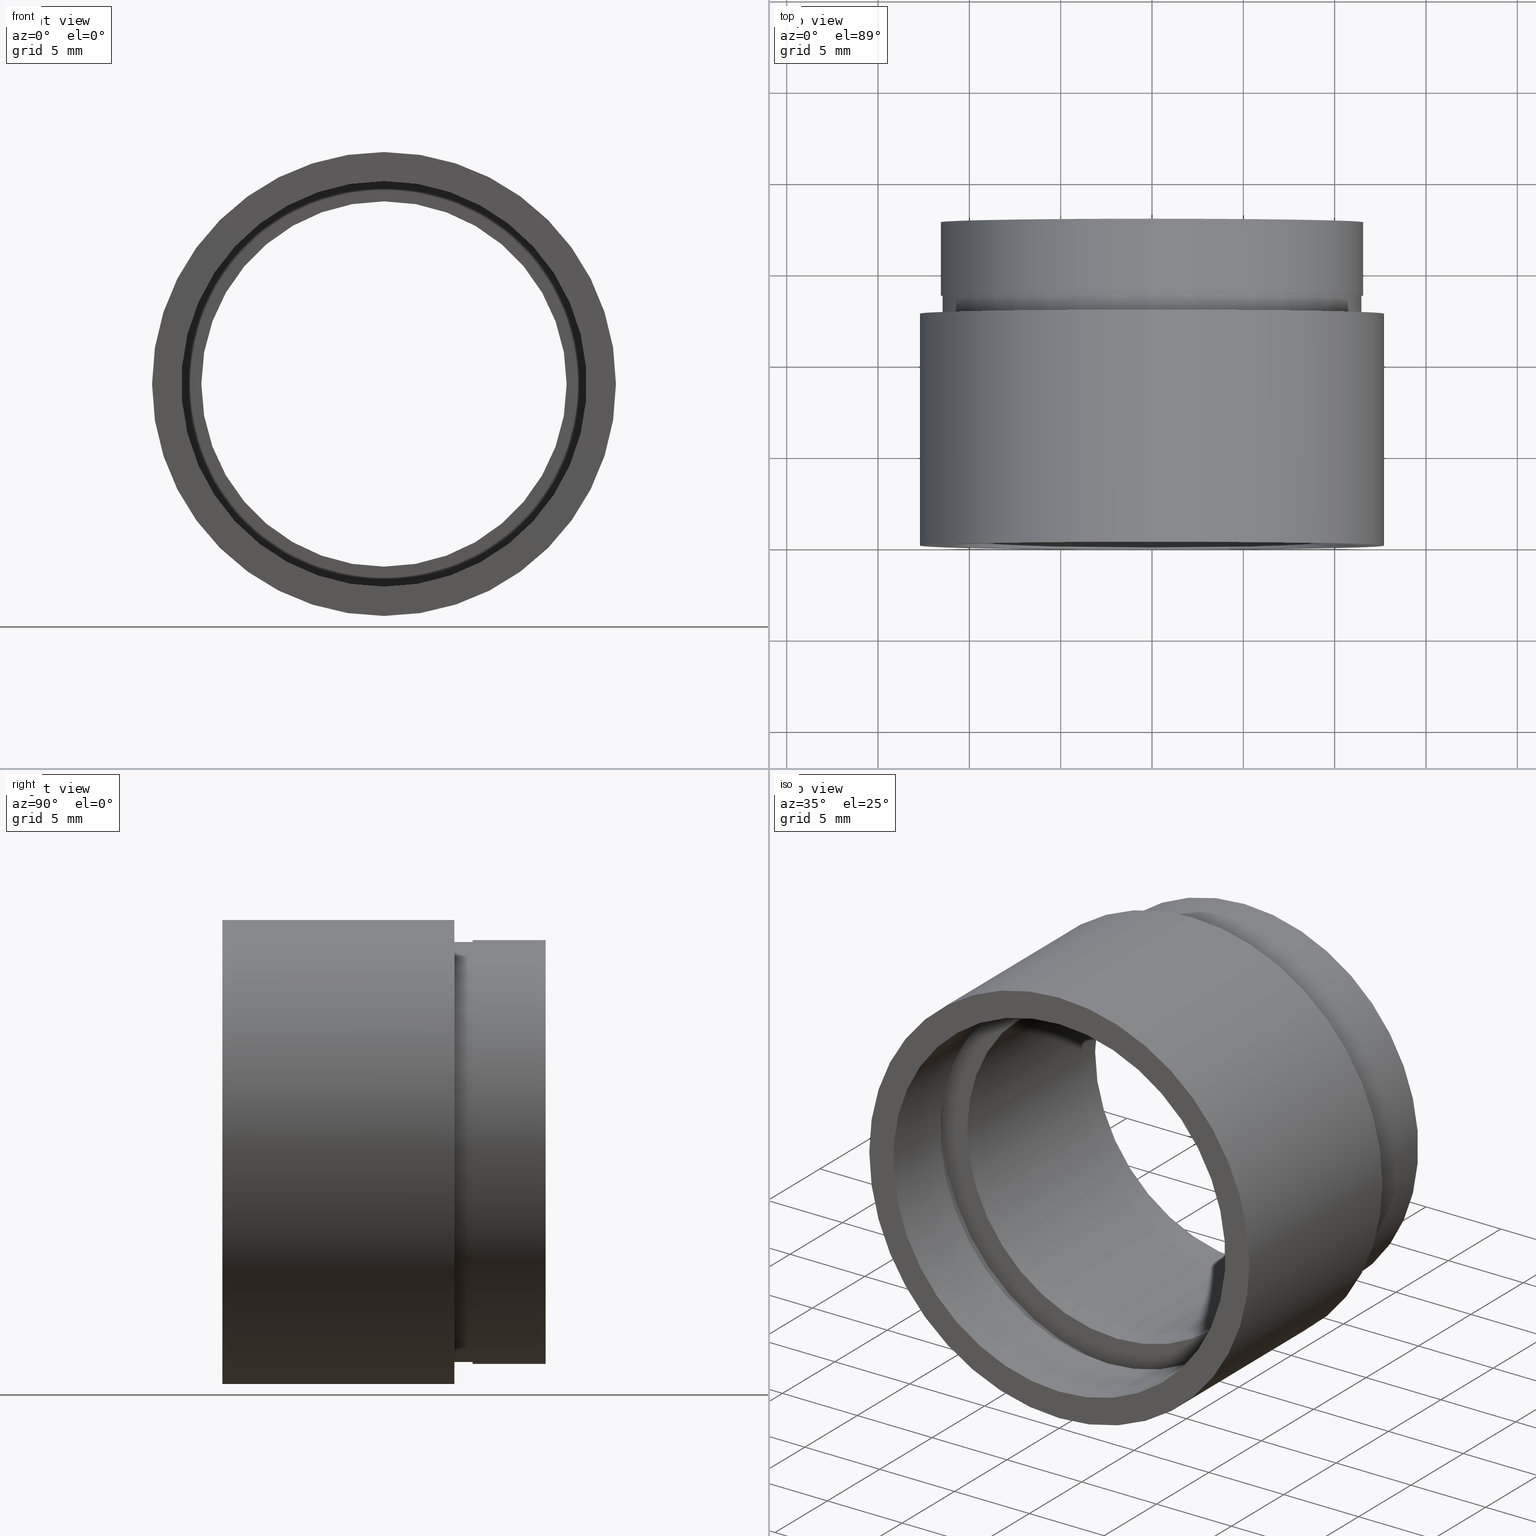
[diagram: canonical four-view strip — front | top / right | iso, engineering-drawing reading convention]
A machine part, canonical four-view strip (front | top / right | iso — engineering-drawing reading convention). The complete STEP part file that produces these views, byte-faithful:
ISO-10303-21;
HEADER;
FILE_DESCRIPTION (( 'STEP AP214' ),
    '1' );
FILE_NAME ('503059.STEP',
    '2019-09-09T02:06:02',
    ( '' ),
    ( '' ),
    'SwSTEP 2.0',
    'SolidWorks 2016',
    '' );
FILE_SCHEMA (( 'AUTOMOTIVE_DESIGN' ));
ENDSEC;

DATA;
#1 = DIRECTION ( 'NONE',  ( 0.0000000000000000000, 0.0000000000000000000, 1.000000000000000000 ) ) ;
#2 = CARTESIAN_POINT ( 'NONE',  ( 11.10000000000001700, -1.580543700394483700E-014, 0.0000000000000000000 ) ) ;
#3 = ORIENTED_EDGE ( 'NONE', *, *, #515, .F. ) ;
#4 = CARTESIAN_POINT ( 'NONE',  ( 1.408343819019458500E-015, 12.69999999999998900, -11.50000000000002000 ) ) ;
#5 = EDGE_CURVE ( 'NONE', #211, #91, #455, .T. ) ;
#6 = CARTESIAN_POINT ( 'NONE',  ( 1.359357947053564100E-015, 4.499999999999976000, -11.10000000000001700 ) ) ;
#7 = FACE_BOUND ( 'NONE', #210, .T. ) ;
#8 = CIRCLE ( 'NONE', #401, 11.70000000000001900 ) ;
#9 = AXIS2_PLACEMENT_3D ( 'NONE', #93, #481, #561 ) ;
#10 = DIRECTION ( 'NONE',  ( 0.0000000000000000000, 0.0000000000000000000, 1.000000000000000000 ) ) ;
#11 = ORIENTED_EDGE ( 'NONE', *, *, #283, .F. ) ;
#12 = ORIENTED_EDGE ( 'NONE', *, *, #317, .T. ) ;
#13 = COLOUR_RGB ( '',1.000000000000000000, 1.000000000000000000, 1.000000000000000000 ) ;
#14 = DIRECTION ( 'NONE',  ( -0.0000000000000000000, 1.000000000000000000, -0.0000000000000000000 ) ) ;
#15 = VECTOR ( 'NONE', #476, 1000.000000000000000 ) ;
#16 = SHAPE_DEFINITION_REPRESENTATION ( #265, #585 ) ;
#17 = EDGE_CURVE ( 'NONE', #611, #34, #128, .T. ) ;
#18 = ORIENTED_EDGE ( 'NONE', *, *, #549, .F. ) ;
#19 = FACE_OUTER_BOUND ( 'NONE', #274, .T. ) ;
#20 = VECTOR ( 'NONE', #416, 1000.000000000000000 ) ;
#21 = FACE_OUTER_BOUND ( 'NONE', #226, .T. ) ;
#22 = DIRECTION ( 'NONE',  ( -0.0000000000000000000, 1.000000000000000000, -0.0000000000000000000 ) ) ;
#23 = LINE ( 'NONE', #28, #20 ) ;
#24 = VERTEX_POINT ( 'NONE', #554 ) ;
#25 = DIRECTION ( 'NONE',  ( 0.0000000000000000000, -0.0000000000000000000, -1.000000000000000000 ) ) ;
#26 = ORIENTED_EDGE ( 'NONE', *, *, #190, .T. ) ;
#27 = PRESENTATION_LAYER_ASSIGNMENT (  '', '', ( #251 ) ) ;
#28 = CARTESIAN_POINT ( 'NONE',  ( 1.408343819019458500E-015, 161.3761669434274500, -11.50000000000002000 ) ) ;
#29 = CARTESIAN_POINT ( 'NONE',  ( 1.432836755002405700E-015, 5.499999999999976900, -11.70000000000001900 ) ) ;
#30 = AXIS2_PLACEMENT_3D ( 'NONE', #75, #599, #25 ) ;
#31 = LINE ( 'NONE', #90, #527 ) ;
#32 = EDGE_CURVE ( 'NONE', #418, #258, #116, .T. ) ;
#33 = DIRECTION ( 'NONE',  ( -0.0000000000000000000, 1.000000000000000000, -0.0000000000000000000 ) ) ;
#34 = VERTEX_POINT ( 'NONE', #29 ) ;
#35 = AXIS2_PLACEMENT_3D ( 'NONE', #252, #435, #245 ) ;
#36 = CARTESIAN_POINT ( 'NONE',  ( 1.555301434917141000E-015, -2.775557561562891400E-014, -12.70000000000002100 ) ) ;
#37 = ADVANCED_FACE ( 'NONE', ( #372 ), #539, .T. ) ;
#38 = CIRCLE ( 'NONE', #436, 11.10000000000001700 ) ;
#39 = CARTESIAN_POINT ( 'NONE',  ( 0.0000000000000000000, 161.3761669434274500, 0.0000000000000000000 ) ) ;
#40 = CIRCLE ( 'NONE', #360, 11.60000000000001700 ) ;
#41 = EDGE_CURVE ( 'NONE', #258, #434, #58, .T. ) ;
#42 = EDGE_LOOP ( 'NONE', ( #353, #566, #194, #452 ) ) ;
#43 = AXIS2_PLACEMENT_3D ( 'NONE', #614, #613, #246 ) ;
#44 = ORIENTED_EDGE ( 'NONE', *, *, #121, .T. ) ;
#45 = DIRECTION ( 'NONE',  ( 0.0000000000000000000, 0.0000000000000000000, 1.000000000000000000 ) ) ;
#46 = DIRECTION ( 'NONE',  ( 0.0000000000000000000, 0.0000000000000000000, 1.000000000000000000 ) ) ;
#47 = ADVANCED_FACE ( 'NONE', ( #454 ), #70, .T. ) ;
#48 = DIRECTION ( 'NONE',  ( -0.0000000000000000000, 1.000000000000000000, -0.0000000000000000000 ) ) ;
#49 = DIRECTION ( 'NONE',  ( 0.0000000000000000000, 0.0000000000000000000, 1.000000000000000000 ) ) ;
#50 =( NAMED_UNIT ( * ) PLANE_ANGLE_UNIT ( ) SI_UNIT ( $, .RADIAN. ) );
#51 =( LENGTH_UNIT ( ) NAMED_UNIT ( * ) SI_UNIT ( .MILLI., .METRE. ) );
#52 = AXIS2_PLACEMENT_3D ( 'NONE', #545, #270, #507 ) ;
#53 = DIRECTION ( 'NONE',  ( 0.0000000000000000000, 0.0000000000000000000, 1.000000000000000000 ) ) ;
#54 = ORIENTED_EDGE ( 'NONE', *, *, #89, .F. ) ;
#55 = EDGE_CURVE ( 'NONE', #321, #543, #192, .T. ) ;
#56 = VECTOR ( 'NONE', #213, 1000.000000000000000 ) ;
#57 = CARTESIAN_POINT ( 'NONE',  ( 1.420590287010931700E-015, 13.69999999999999000, -11.60000000000001700 ) ) ;
#58 = CIRCLE ( 'NONE', #244, 11.60000000000001700 ) ;
#59 = DIRECTION ( 'NONE',  ( 0.0000000000000000000, 0.0000000000000000000, 1.000000000000000000 ) ) ;
#60 = VERTEX_POINT ( 'NONE', #181 ) ;
#61 = VERTEX_POINT ( 'NONE', #323 ) ;
#62 = FILL_AREA_STYLE ('',( #312 ) ) ;
#63 = PLANE ( 'NONE',  #397 ) ;
#64 = PRESENTATION_LAYER_ASSIGNMENT (  '', '', ( #570 ) ) ;
#65 = EDGE_CURVE ( 'NONE', #299, #543, #23, .T. ) ;
#66 = EDGE_LOOP ( 'NONE', ( #445, #81, #271, #319 ) ) ;
#67 = FACE_OUTER_BOUND ( 'NONE', #195, .T. ) ;
#68 = AXIS2_PLACEMENT_3D ( 'NONE', #39, #568, #352 ) ;
#69 = FACE_BOUND ( 'NONE', #320, .T. ) ;
#70 = CYLINDRICAL_SURFACE ( 'NONE', #114, 11.60000000000001700 ) ;
#71 = EDGE_CURVE ( 'NONE', #34, #110, #624, .T. ) ;
#72 = EDGE_LOOP ( 'NONE', ( #11, #18 ) ) ;
#73 = VERTEX_POINT ( 'NONE', #329 ) ;
#74 = ORIENTED_EDGE ( 'NONE', *, *, #141, .T. ) ;
#75 = CARTESIAN_POINT ( 'NONE',  ( 11.60000000000001700, 17.69999999999999200, 0.0000000000000000000 ) ) ;
#76 = AXIS2_PLACEMENT_3D ( 'NONE', #470, #337, #564 ) ;
#77 =( NAMED_UNIT ( * ) SI_UNIT ( $, .STERADIAN. ) SOLID_ANGLE_UNIT ( ) );
#78 = DIRECTION ( 'NONE',  ( -0.0000000000000000000, 1.000000000000000000, -0.0000000000000000000 ) ) ;
#79 =( NAMED_UNIT ( * ) SI_UNIT ( $, .STERADIAN. ) SOLID_ANGLE_UNIT ( ) );
#80 = FILL_AREA_STYLE_COLOUR ( '', #335 ) ;
#81 = ORIENTED_EDGE ( 'NONE', *, *, #5, .T. ) ;
#82 = FILL_AREA_STYLE ('',( #80 ) ) ;
#83 = ORIENTED_EDGE ( 'NONE', *, *, #176, .F. ) ;
#84 =( GEOMETRIC_REPRESENTATION_CONTEXT ( 3 ) GLOBAL_UNCERTAINTY_ASSIGNED_CONTEXT ( ( #261 ) ) GLOBAL_UNIT_ASSIGNED_CONTEXT ( ( #51, #437, #348 ) ) REPRESENTATION_CONTEXT ( 'NONE', 'WORKASPACE' ) );
#85 = PLANE ( 'NONE',  #30 ) ;
#86 = ADVANCED_FACE ( 'NONE', ( #519 ), #423, .F. ) ;
#87 = CYLINDRICAL_SURFACE ( 'NONE', #119, 11.50000000000002000 ) ;
#88 = DIRECTION ( 'NONE',  ( -0.0000000000000000000, 1.000000000000000000, -0.0000000000000000000 ) ) ;
#89 = EDGE_CURVE ( 'NONE', #92, #425, #142, .T. ) ;
#90 = CARTESIAN_POINT ( 'NONE',  ( 0.0000000000000000000, 161.3761669434274500, 11.60000000000001700 ) ) ;
#91 = VERTEX_POINT ( 'NONE', #606 ) ;
#92 = VERTEX_POINT ( 'NONE', #375 ) ;
#93 = CARTESIAN_POINT ( 'NONE',  ( 0.0000000000000000000, 4.499999999999976000, 0.0000000000000000000 ) ) ;
#94 =( NAMED_UNIT ( * ) PLANE_ANGLE_UNIT ( ) SI_UNIT ( $, .RADIAN. ) );
#95 = SURFACE_STYLE_FILL_AREA ( #298 ) ;
#96 = FILL_AREA_STYLE_COLOUR ( '', #218 ) ;
#97 = CARTESIAN_POINT ( 'NONE',  ( 0.0000000000000000000, 161.3761669434274500, 0.0000000000000000000 ) ) ;
#98 = DIRECTION ( 'NONE',  ( -0.0000000000000000000, 1.000000000000000000, -0.0000000000000000000 ) ) ;
#99 = VERTEX_POINT ( 'NONE', #127 ) ;
#100 = AXIS2_PLACEMENT_3D ( 'NONE', #419, #379, #518 ) ;
#101 = ORIENTED_EDGE ( 'NONE', *, *, #283, .T. ) ;
#102 =( NAMED_UNIT ( * ) SI_UNIT ( $, .STERADIAN. ) SOLID_ANGLE_UNIT ( ) );
#103 =( LENGTH_UNIT ( ) NAMED_UNIT ( * ) SI_UNIT ( .MILLI., .METRE. ) );
#104 = FILL_AREA_STYLE_COLOUR ( '', #242 ) ;
#105 = CIRCLE ( 'NONE', #52, 12.70000000000002100 ) ;
#106 = UNCERTAINTY_MEASURE_WITH_UNIT (LENGTH_MEASURE( 1.000000000000000100E-005 ), #441, 'distance_accuracy_value', 'NONE');
#107 = AXIS2_PLACEMENT_3D ( 'NONE', #199, #257, #575 ) ;
#108 = DIRECTION ( 'NONE',  ( -0.0000000000000000000, 1.000000000000000000, -0.0000000000000000000 ) ) ;
#109 = ORIENTED_EDGE ( 'NONE', *, *, #473, .T. ) ;
#110 = VERTEX_POINT ( 'NONE', #411 ) ;
#111 = EDGE_CURVE ( 'NONE', #425, #282, #389, .T. ) ;
#112 = DIRECTION ( 'NONE',  ( 0.0000000000000000000, 0.0000000000000000000, 1.000000000000000000 ) ) ;
#113 = DIRECTION ( 'NONE',  ( -0.0000000000000000000, 1.000000000000000000, -0.0000000000000000000 ) ) ;
#114 = AXIS2_PLACEMENT_3D ( 'NONE', #414, #601, #367 ) ;
#115 = CIRCLE ( 'NONE', #100, 10.00000000000002000 ) ;
#116 = LINE ( 'NONE', #604, #603 ) ;
#117 = UNCERTAINTY_MEASURE_WITH_UNIT (LENGTH_MEASURE( 1.000000000000000100E-005 ), #426, 'distance_accuracy_value', 'NONE');
#118 = CARTESIAN_POINT ( 'NONE',  ( 0.0000000000000000000, 4.499999999999976000, 0.0000000000000000000 ) ) ;
#119 = AXIS2_PLACEMENT_3D ( 'NONE', #386, #98, #301 ) ;
#120 = VECTOR ( 'NONE', #88, 1000.000000000000000 ) ;
#121 = EDGE_CURVE ( 'NONE', #611, #24, #8, .T. ) ;
#122 = EDGE_CURVE ( 'NONE', #60, #321, #608, .T. ) ;
#123 = ORIENTED_EDGE ( 'NONE', *, *, #122, .F. ) ;
#124 = CARTESIAN_POINT ( 'NONE',  ( 1.432836755002405700E-015, 161.3761669434274500, -11.70000000000001900 ) ) ;
#125 = SURFACE_STYLE_USAGE ( .BOTH. , #504 ) ;
#126 = CYLINDRICAL_SURFACE ( 'NONE', #555, 11.70000000000001900 ) ;
#127 = CARTESIAN_POINT ( 'NONE',  ( 1.555301434917140800E-015, 12.69999999999998900, -12.70000000000001900 ) ) ;
#128 = LINE ( 'NONE', #124, #493 ) ;
#129 = DIRECTION ( 'NONE',  ( 0.0000000000000000000, 0.0000000000000000000, 1.000000000000000000 ) ) ;
#130 = AXIS2_PLACEMENT_3D ( 'NONE', #530, #579, #537 ) ;
#131 = DIRECTION ( 'NONE',  ( 0.0000000000000000000, 0.0000000000000000000, 1.000000000000000000 ) ) ;
#132 = ADVANCED_FACE ( 'NONE', ( #505, #406 ), #85, .F. ) ;
#133 = MECHANICAL_DESIGN_GEOMETRIC_PRESENTATION_REPRESENTATION (  '', ( #461 ), #168 ) ;
#134 =( LENGTH_UNIT ( ) NAMED_UNIT ( * ) SI_UNIT ( .MILLI., .METRE. ) );
#135 = LINE ( 'NONE', #310, #332 ) ;
#136 = FACE_OUTER_BOUND ( 'NONE', #225, .T. ) ;
#137 = PRESENTATION_STYLE_ASSIGNMENT (( #457 ) ) ;
#138 = AXIS2_PLACEMENT_3D ( 'NONE', #2, #581, #484 ) ;
#139 =( LENGTH_UNIT ( ) NAMED_UNIT ( * ) SI_UNIT ( .MILLI., .METRE. ) );
#140 = CARTESIAN_POINT ( 'NONE',  ( 0.0000000000000000000, 161.3761669434274500, 11.70000000000001900 ) ) ;
#141 = EDGE_CURVE ( 'NONE', #24, #611, #175, .T. ) ;
#142 = LINE ( 'NONE', #467, #254 ) ;
#143 = FILL_AREA_STYLE_COLOUR ( '', #288 ) ;
#144 = ADVANCED_FACE ( 'NONE', ( #593 ), #126, .F. ) ;
#145 = PRESENTATION_LAYER_ASSIGNMENT (  '', '', ( #461 ) ) ;
#146 = ORIENTED_EDGE ( 'NONE', *, *, #410, .F. ) ;
#147 = CARTESIAN_POINT ( 'NONE',  ( 0.0000000000000000000, 5.499999999999976900, 0.0000000000000000000 ) ) ;
#148 = SURFACE_STYLE_USAGE ( .BOTH. , #243 ) ;
#149 = CARTESIAN_POINT ( 'NONE',  ( 1.555301434917141000E-015, 161.3761669434274500, -12.70000000000002100 ) ) ;
#150 = FACE_BOUND ( 'NONE', #358, .T. ) ;
#151 = PRODUCT_CONTEXT ( 'NONE', #293, 'mechanical' ) ;
#152 = CARTESIAN_POINT ( 'NONE',  ( 0.0000000000000000000, 4.499999999999976000, 11.10000000000001700 ) ) ;
#153 =( GEOMETRIC_REPRESENTATION_CONTEXT ( 3 ) GLOBAL_UNCERTAINTY_ASSIGNED_CONTEXT ( ( #512 ) ) GLOBAL_UNIT_ASSIGNED_CONTEXT ( ( #382, #485, #296 ) ) REPRESENTATION_CONTEXT ( 'NONE', 'WORKASPACE' ) );
#154 = SURFACE_STYLE_FILL_AREA ( #383 ) ;
#155 = DIRECTION ( 'NONE',  ( 0.0000000000000000000, 0.0000000000000000000, 1.000000000000000000 ) ) ;
#156 = EDGE_LOOP ( 'NONE', ( #489, #365, #384, #3 ) ) ;
#157 = DIRECTION ( 'NONE',  ( 0.0000000000000000000, 0.0000000000000000000, 1.000000000000000000 ) ) ;
#158 = EDGE_CURVE ( 'NONE', #24, #110, #381, .T. ) ;
#159 = DIRECTION ( 'NONE',  ( -0.0000000000000000000, 1.000000000000000000, -0.0000000000000000000 ) ) ;
#160 = PRESENTATION_STYLE_ASSIGNMENT (( #623 ) ) ;
#161 = SURFACE_STYLE_FILL_AREA ( #82 ) ;
#162 = CARTESIAN_POINT ( 'NONE',  ( 1.224646799147355400E-015, 161.3761669434274500, -10.00000000000002000 ) ) ;
#163 = ORIENTED_EDGE ( 'NONE', *, *, #486, .F. ) ;
#164 = ORIENTED_EDGE ( 'NONE', *, *, #17, .F. ) ;
#165 = PRESENTATION_LAYER_ASSIGNMENT (  '', '', ( #560 ) ) ;
#166 = MANIFOLD_SOLID_BREP ( '��ת1', #398 ) ;
#167 = DIRECTION ( 'NONE',  ( -0.0000000000000000000, 1.000000000000000000, -0.0000000000000000000 ) ) ;
#168 =( GEOMETRIC_REPRESENTATION_CONTEXT ( 3 ) GLOBAL_UNCERTAINTY_ASSIGNED_CONTEXT ( ( #286 ) ) GLOBAL_UNIT_ASSIGNED_CONTEXT ( ( #134, #236, #77 ) ) REPRESENTATION_CONTEXT ( 'NONE', 'WORKASPACE' ) );
#169 = DIRECTION ( 'NONE',  ( -0.0000000000000000000, 1.000000000000000000, -0.0000000000000000000 ) ) ;
#170 = ORIENTED_EDGE ( 'NONE', *, *, #111, .F. ) ;
#171 = CIRCLE ( 'NONE', #304, 10.00000000000002000 ) ;
#172 = UNCERTAINTY_MEASURE_WITH_UNIT (LENGTH_MEASURE( 1.000000000000000100E-005 ), #103, 'distance_accuracy_value', 'NONE');
#173 = DIRECTION ( 'NONE',  ( -0.0000000000000000000, 1.000000000000000000, -0.0000000000000000000 ) ) ;
#174 = CYLINDRICAL_SURFACE ( 'NONE', #340, 11.70000000000001900 ) ;
#175 = CIRCLE ( 'NONE', #9, 11.70000000000001900 ) ;
#176 = EDGE_CURVE ( 'NONE', #412, #238, #115, .T. ) ;
#177 = ORIENTED_EDGE ( 'NONE', *, *, #377, .T. ) ;
#178 = ORIENTED_EDGE ( 'NONE', *, *, #607, .F. ) ;
#179 = AXIS2_PLACEMENT_3D ( 'NONE', #180, #278, #131 ) ;
#180 = CARTESIAN_POINT ( 'NONE',  ( 0.0000000000000000000, 5.499999999999976900, 0.0000000000000000000 ) ) ;
#181 = CARTESIAN_POINT ( 'NONE',  ( 0.0000000000000000000, 12.69999999999998900, 11.50000000000002000 ) ) ;
#182 = ADVANCED_FACE ( 'NONE', ( #334, #69 ), #380, .F. ) ;
#183 = DIRECTION ( 'NONE',  ( -0.0000000000000000000, 1.000000000000000000, -0.0000000000000000000 ) ) ;
#184 = FACE_OUTER_BOUND ( 'NONE', #506, .T. ) ;
#185 = FILL_AREA_STYLE ('',( #559 ) ) ;
#186 = ORIENTED_EDGE ( 'NONE', *, *, #256, .F. ) ;
#187 =( GEOMETRIC_REPRESENTATION_CONTEXT ( 3 ) GLOBAL_UNCERTAINTY_ASSIGNED_CONTEXT ( ( #172 ) ) GLOBAL_UNIT_ASSIGNED_CONTEXT ( ( #103, #50, #388 ) ) REPRESENTATION_CONTEXT ( 'NONE', 'WORKASPACE' ) );
#188 = DIRECTION ( 'NONE',  ( -0.0000000000000000000, 1.000000000000000000, -0.0000000000000000000 ) ) ;
#189 = ADVANCED_FACE ( 'NONE', ( #562, #586 ), #287, .F. ) ;
#190 = EDGE_CURVE ( 'NONE', #61, #418, #574, .T. ) ;
#191 = LINE ( 'NONE', #612, #120 ) ;
#192 = CIRCLE ( 'NONE', #371, 11.50000000000002000 ) ;
#193 = CARTESIAN_POINT ( 'NONE',  ( 12.70000000000001900, 12.69999999999998200, 0.0000000000000000000 ) ) ;
#194 = ORIENTED_EDGE ( 'NONE', *, *, #71, .T. ) ;
#195 = EDGE_LOOP ( 'NONE', ( #328, #595, #267, #474 ) ) ;
#196 =( NAMED_UNIT ( * ) SI_UNIT ( $, .STERADIAN. ) SOLID_ANGLE_UNIT ( ) );
#197 = FILL_AREA_STYLE_COLOUR ( '', #499 ) ;
#198 = AXIS2_PLACEMENT_3D ( 'NONE', #396, #216, #112 ) ;
#199 = CARTESIAN_POINT ( 'NONE',  ( 0.0000000000000000000, 12.69999999999998900, 0.0000000000000000000 ) ) ;
#200 = APPLICATION_PROTOCOL_DEFINITION ( 'draft international standard', 'automotive_design', 1998, #483 ) ;
#201 = ORIENTED_EDGE ( 'NONE', *, *, #41, .F. ) ;
#202 = DIRECTION ( 'NONE',  ( 0.0000000000000000000, 0.0000000000000000000, 1.000000000000000000 ) ) ;
#203 = DIRECTION ( 'NONE',  ( 0.0000000000000000000, 0.0000000000000000000, 1.000000000000000000 ) ) ;
#204 = CIRCLE ( 'NONE', #239, 10.00000000000002000 ) ;
#205 = DIRECTION ( 'NONE',  ( -0.0000000000000000000, 1.000000000000000000, -0.0000000000000000000 ) ) ;
#206 =( NAMED_UNIT ( * ) PLANE_ANGLE_UNIT ( ) SI_UNIT ( $, .RADIAN. ) );
#207 = AXIS2_PLACEMENT_3D ( 'NONE', #306, #540, #547 ) ;
#208 = SURFACE_SIDE_STYLE ('',( #279 ) ) ;
#209 = ORIENTED_EDGE ( 'NONE', *, *, #89, .T. ) ;
#210 = EDGE_LOOP ( 'NONE', ( #146, #170 ) ) ;
#211 = VERTEX_POINT ( 'NONE', #36 ) ;
#212 = EDGE_CURVE ( 'NONE', #73, #238, #191, .T. ) ;
#213 = DIRECTION ( 'NONE',  ( -0.0000000000000000000, 1.000000000000000000, -0.0000000000000000000 ) ) ;
#214 =( GEOMETRIC_REPRESENTATION_CONTEXT ( 3 ) GLOBAL_UNCERTAINTY_ASSIGNED_CONTEXT ( ( #235 ) ) GLOBAL_UNIT_ASSIGNED_CONTEXT ( ( #281, #417, #79 ) ) REPRESENTATION_CONTEXT ( 'NONE', 'WORKASPACE' ) );
#215 = UNCERTAINTY_MEASURE_WITH_UNIT (LENGTH_MEASURE( 1.000000000000000100E-005 ), #139, 'distance_accuracy_value', 'NONE');
#216 = DIRECTION ( 'NONE',  ( -0.0000000000000000000, 1.000000000000000000, -0.0000000000000000000 ) ) ;
#217 = CYLINDRICAL_SURFACE ( 'NONE', #68, 11.10000000000001700 ) ;
#218 = COLOUR_RGB ( '',1.000000000000000000, 1.000000000000000000, 1.000000000000000000 ) ;
#219 = DIRECTION ( 'NONE',  ( 0.0000000000000000000, 0.0000000000000000000, 1.000000000000000000 ) ) ;
#220 = ORIENTED_EDGE ( 'NONE', *, *, #565, .F. ) ;
#221 =( NAMED_UNIT ( * ) PLANE_ANGLE_UNIT ( ) SI_UNIT ( $, .RADIAN. ) );
#222 = FACE_OUTER_BOUND ( 'NONE', #359, .T. ) ;
#223 = CIRCLE ( 'NONE', #107, 11.50000000000002000 ) ;
#224 = EDGE_CURVE ( 'NONE', #61, #434, #31, .T. ) ;
#225 = EDGE_LOOP ( 'NONE', ( #54, #385, #109, #618 ) ) ;
#226 = EDGE_LOOP ( 'NONE', ( #164, #508, #237, #364 ) ) ;
#227 = CARTESIAN_POINT ( 'NONE',  ( 0.0000000000000000000, 161.3761669434274500, 0.0000000000000000000 ) ) ;
#228 = CARTESIAN_POINT ( 'NONE',  ( 0.0000000000000000000, 161.3761669434274500, 0.0000000000000000000 ) ) ;
#229 = FACE_BOUND ( 'NONE', #407, .T. ) ;
#230 = DIRECTION ( 'NONE',  ( 0.0000000000000000000, 0.0000000000000000000, 1.000000000000000000 ) ) ;
#231 = DIRECTION ( 'NONE',  ( 0.0000000000000000000, 0.0000000000000000000, 1.000000000000000000 ) ) ;
#232 = AXIS2_PLACEMENT_3D ( 'NONE', #249, #347, #157 ) ;
#233 = ORIENTED_EDGE ( 'NONE', *, *, #515, .T. ) ;
#234 = ORIENTED_EDGE ( 'NONE', *, *, #32, .T. ) ;
#235 = UNCERTAINTY_MEASURE_WITH_UNIT (LENGTH_MEASURE( 1.000000000000000100E-005 ), #281, 'distance_accuracy_value', 'NONE');
#236 =( NAMED_UNIT ( * ) PLANE_ANGLE_UNIT ( ) SI_UNIT ( $, .RADIAN. ) );
#237 = ORIENTED_EDGE ( 'NONE', *, *, #158, .T. ) ;
#238 = VERTEX_POINT ( 'NONE', #573 ) ;
#239 = AXIS2_PLACEMENT_3D ( 'NONE', #297, #205, #529 ) ;
#240 = FILL_AREA_STYLE ('',( #197 ) ) ;
#241 = DIRECTION ( 'NONE',  ( -0.0000000000000000000, 1.000000000000000000, -0.0000000000000000000 ) ) ;
#242 = COLOUR_RGB ( '',1.000000000000000000, 1.000000000000000000, 1.000000000000000000 ) ;
#243 = SURFACE_SIDE_STYLE ('',( #154 ) ) ;
#244 = AXIS2_PLACEMENT_3D ( 'NONE', #272, #460, #231 ) ;
#245 = DIRECTION ( 'NONE',  ( 0.0000000000000000000, 0.0000000000000000000, 1.000000000000000000 ) ) ;
#246 = DIRECTION ( 'NONE',  ( 0.0000000000000000000, 0.0000000000000000000, 1.000000000000000000 ) ) ;
#247 = ORIENTED_EDGE ( 'NONE', *, *, #71, .F. ) ;
#248 = VERTEX_POINT ( 'NONE', #331 ) ;
#249 = CARTESIAN_POINT ( 'NONE',  ( 0.0000000000000000000, 12.69999999999998900, 0.0000000000000000000 ) ) ;
#250 = CARTESIAN_POINT ( 'NONE',  ( 0.0000000000000000000, 161.3761669434274500, 0.0000000000000000000 ) ) ;
#251 = STYLED_ITEM ( 'NONE', ( #160 ), #341 ) ;
#252 = CARTESIAN_POINT ( 'NONE',  ( 0.0000000000000000000, 12.69999999999998900, 0.0000000000000000000 ) ) ;
#253 = DIRECTION ( 'NONE',  ( -0.0000000000000000000, 1.000000000000000000, -0.0000000000000000000 ) ) ;
#254 = VECTOR ( 'NONE', #188, 1000.000000000000000 ) ;
#255 = CARTESIAN_POINT ( 'NONE',  ( 0.0000000000000000000, 17.69999999999999200, 0.0000000000000000000 ) ) ;
#256 = EDGE_CURVE ( 'NONE', #92, #569, #362, .T. ) ;
#257 = DIRECTION ( 'NONE',  ( -0.0000000000000000000, 1.000000000000000000, -0.0000000000000000000 ) ) ;
#258 = VERTEX_POINT ( 'NONE', #609 ) ;
#259 = FILL_AREA_STYLE_COLOUR ( '', #405 ) ;
#260 = LINE ( 'NONE', #313, #56 ) ;
#261 = UNCERTAINTY_MEASURE_WITH_UNIT (LENGTH_MEASURE( 1.000000000000000100E-005 ), #51, 'distance_accuracy_value', 'NONE');
#262 =( LENGTH_UNIT ( ) NAMED_UNIT ( * ) SI_UNIT ( .MILLI., .METRE. ) );
#263 = CARTESIAN_POINT ( 'NONE',  ( 1.408343819019458500E-015, 13.69999999999999000, -11.50000000000002000 ) ) ;
#264 = AXIS2_PLACEMENT_3D ( 'NONE', #449, #113, #10 ) ;
#265 = PRODUCT_DEFINITION_SHAPE ( 'NONE', 'NONE',  #546 ) ;
#266 = DIRECTION ( 'NONE',  ( -0.0000000000000000000, 1.000000000000000000, -0.0000000000000000000 ) ) ;
#267 = ORIENTED_EDGE ( 'NONE', *, *, #315, .F. ) ;
#268 = CYLINDRICAL_SURFACE ( 'NONE', #469, 10.00000000000002000 ) ;
#269 = STYLED_ITEM ( 'NONE', ( #496 ), #514 ) ;
#270 = DIRECTION ( 'NONE',  ( -0.0000000000000000000, 1.000000000000000000, -0.0000000000000000000 ) ) ;
#271 = ORIENTED_EDGE ( 'NONE', *, *, #351, .T. ) ;
#272 = CARTESIAN_POINT ( 'NONE',  ( 0.0000000000000000000, 17.69999999999999200, 0.0000000000000000000 ) ) ;
#273 = AXIS2_PLACEMENT_3D ( 'NONE', #374, #22, #230 ) ;
#274 = EDGE_LOOP ( 'NONE', ( #522, #327 ) ) ;
#275 = CARTESIAN_POINT ( 'NONE',  ( 0.0000000000000000000, 13.69999999999999000, 0.0000000000000000000 ) ) ;
#276 = DIRECTION ( 'NONE',  ( 0.0000000000000000000, 0.0000000000000000000, 1.000000000000000000 ) ) ;
#277 = FACE_OUTER_BOUND ( 'NONE', #344, .T. ) ;
#278 = DIRECTION ( 'NONE',  ( -0.0000000000000000000, 1.000000000000000000, -0.0000000000000000000 ) ) ;
#279 = SURFACE_STYLE_FILL_AREA ( #392 ) ;
#280 = ADVANCED_FACE ( 'NONE', ( #136 ), #217, .F. ) ;
#281 =( LENGTH_UNIT ( ) NAMED_UNIT ( * ) SI_UNIT ( .MILLI., .METRE. ) );
#282 = VERTEX_POINT ( 'NONE', #152 ) ;
#283 = EDGE_CURVE ( 'NONE', #60, #299, #223, .T. ) ;
#284 = DIRECTION ( 'NONE',  ( 0.0000000000000000000, 0.0000000000000000000, 1.000000000000000000 ) ) ;
#285 = EDGE_CURVE ( 'NONE', #211, #99, #448, .T. ) ;
#286 = UNCERTAINTY_MEASURE_WITH_UNIT (LENGTH_MEASURE( 1.000000000000000100E-005 ), #134, 'distance_accuracy_value', 'NONE');
#287 = PLANE ( 'NONE',  #588 ) ;
#288 = COLOUR_RGB ( '',1.000000000000000000, 1.000000000000000000, 1.000000000000000000 ) ;
#289 = ADVANCED_FACE ( 'NONE', ( #184 ), #268, .F. ) ;
#290 = SURFACE_STYLE_USAGE ( .BOTH. , #421 ) ;
#291 = VERTEX_POINT ( 'NONE', #528 ) ;
#292 = ADVANCED_FACE ( 'NONE', ( #21 ), #174, .F. ) ;
#293 = APPLICATION_CONTEXT ( 'automotive_design' ) ;
#294 =( NAMED_UNIT ( * ) SI_UNIT ( $, .STERADIAN. ) SOLID_ANGLE_UNIT ( ) );
#295 = AXIS2_PLACEMENT_3D ( 'NONE', #255, #342, #45 ) ;
#296 =( NAMED_UNIT ( * ) SI_UNIT ( $, .STERADIAN. ) SOLID_ANGLE_UNIT ( ) );
#297 = CARTESIAN_POINT ( 'NONE',  ( 0.0000000000000000000, 5.499999999999976900, 0.0000000000000000000 ) ) ;
#298 = FILL_AREA_STYLE ('',( #104 ) ) ;
#299 = VERTEX_POINT ( 'NONE', #4 ) ;
#300 = CARTESIAN_POINT ( 'NONE',  ( 0.0000000000000000000, 17.69999999999999200, 0.0000000000000000000 ) ) ;
#301 = DIRECTION ( 'NONE',  ( 0.0000000000000000000, 0.0000000000000000000, 1.000000000000000000 ) ) ;
#302 = CARTESIAN_POINT ( 'NONE',  ( 0.0000000000000000000, 13.69999999999999000, 11.50000000000002000 ) ) ;
#303 = CYLINDRICAL_SURFACE ( 'NONE', #198, 11.60000000000001700 ) ;
#304 = AXIS2_PLACEMENT_3D ( 'NONE', #300, #390, #53 ) ;
#305 = DIRECTION ( 'NONE',  ( 0.0000000000000000000, 0.0000000000000000000, 1.000000000000000000 ) ) ;
#306 = CARTESIAN_POINT ( 'NONE',  ( 11.10000000000001700, 4.499999999999983100, 0.0000000000000000000 ) ) ;
#307 = EDGE_LOOP ( 'NONE', ( #220, #177, #427, #582 ) ) ;
#308 = EDGE_LOOP ( 'NONE', ( #163, #247 ) ) ;
#309 = MECHANICAL_DESIGN_GEOMETRIC_PRESENTATION_REPRESENTATION (  '', ( #393 ), #187 ) ;
#310 = CARTESIAN_POINT ( 'NONE',  ( 0.0000000000000000000, 161.3761669434274500, 11.10000000000001700 ) ) ;
#311 = AXIS2_PLACEMENT_3D ( 'NONE', #227, #597, #318 ) ;
#312 = FILL_AREA_STYLE_COLOUR ( '', #13 ) ;
#313 = CARTESIAN_POINT ( 'NONE',  ( 0.0000000000000000000, 161.3761669434274500, 12.70000000000002100 ) ) ;
#314 = PRODUCT_RELATED_PRODUCT_CATEGORY ( 'part', '', ( #465 ) ) ;
#315 = EDGE_CURVE ( 'NONE', #248, #99, #538, .T. ) ;
#316 = FACE_OUTER_BOUND ( 'NONE', #66, .T. ) ;
#317 = EDGE_CURVE ( 'NONE', #418, #61, #40, .T. ) ;
#318 = DIRECTION ( 'NONE',  ( 0.0000000000000000000, 0.0000000000000000000, 1.000000000000000000 ) ) ;
#319 = ORIENTED_EDGE ( 'NONE', *, *, #578, .F. ) ;
#320 = EDGE_LOOP ( 'NONE', ( #463, #495 ) ) ;
#321 = VERTEX_POINT ( 'NONE', #302 ) ;
#322 = DIRECTION ( 'NONE',  ( -0.0000000000000000000, 1.000000000000000000, -0.0000000000000000000 ) ) ;
#323 = CARTESIAN_POINT ( 'NONE',  ( 0.0000000000000000000, 13.69999999999999000, 11.60000000000001700 ) ) ;
#324 = CARTESIAN_POINT ( 'NONE',  ( 0.0000000000000000000, -2.775557561562891400E-014, 0.0000000000000000000 ) ) ;
#325 =( GEOMETRIC_REPRESENTATION_CONTEXT ( 3 ) GLOBAL_UNCERTAINTY_ASSIGNED_CONTEXT ( ( #215 ) ) GLOBAL_UNIT_ASSIGNED_CONTEXT ( ( #139, #479, #196 ) ) REPRESENTATION_CONTEXT ( 'NONE', 'WORKASPACE' ) );
#326 = SURFACE_STYLE_FILL_AREA ( #345 ) ;
#327 = ORIENTED_EDGE ( 'NONE', *, *, #5, .F. ) ;
#328 = ORIENTED_EDGE ( 'NONE', *, *, #534, .T. ) ;
#329 = CARTESIAN_POINT ( 'NONE',  ( 0.0000000000000000000, 5.499999999999976900, 10.00000000000002000 ) ) ;
#330 = ADVANCED_FACE ( 'NONE', ( #395 ), #87, .T. ) ;
#331 = CARTESIAN_POINT ( 'NONE',  ( 0.0000000000000000000, 12.69999999999998900, 12.70000000000001900 ) ) ;
#332 = VECTOR ( 'NONE', #400, 1000.000000000000000 ) ;
#333 = DIRECTION ( 'NONE',  ( 0.0000000000000000000, -0.0000000000000000000, -1.000000000000000000 ) ) ;
#334 = FACE_OUTER_BOUND ( 'NONE', #308, .T. ) ;
#335 = COLOUR_RGB ( '',1.000000000000000000, 1.000000000000000000, 1.000000000000000000 ) ;
#336 = AXIS2_PLACEMENT_3D ( 'NONE', #147, #430, #1 ) ;
#337 = DIRECTION ( 'NONE',  ( -0.0000000000000000000, 1.000000000000000000, -0.0000000000000000000 ) ) ;
#338 = ADVANCED_FACE ( 'NONE', ( #19, #229 ), #433, .F. ) ;
#339 = ORIENTED_EDGE ( 'NONE', *, *, #502, .T. ) ;
#340 = AXIS2_PLACEMENT_3D ( 'NONE', #250, #349, #203 ) ;
#341 = ADVANCED_FACE ( 'NONE', ( #368 ), #468, .F. ) ;
#342 = DIRECTION ( 'NONE',  ( -0.0000000000000000000, 1.000000000000000000, -0.0000000000000000000 ) ) ;
#343 = MECHANICAL_DESIGN_GEOMETRIC_PRESENTATION_REPRESENTATION (  '', ( #619 ), #214 ) ;
#344 = EDGE_LOOP ( 'NONE', ( #589, #12, #577, #201 ) ) ;
#345 = FILL_AREA_STYLE ('',( #96 ) ) ;
#346 = DIRECTION ( 'NONE',  ( 0.0000000000000000000, 0.0000000000000000000, 1.000000000000000000 ) ) ;
#347 = DIRECTION ( 'NONE',  ( -0.0000000000000000000, 1.000000000000000000, -0.0000000000000000000 ) ) ;
#348 =( NAMED_UNIT ( * ) SI_UNIT ( $, .STERADIAN. ) SOLID_ANGLE_UNIT ( ) );
#349 = DIRECTION ( 'NONE',  ( -0.0000000000000000000, 1.000000000000000000, -0.0000000000000000000 ) ) ;
#350 = VECTOR ( 'NONE', #488, 1000.000000000000000 ) ;
#351 = EDGE_CURVE ( 'NONE', #91, #248, #260, .T. ) ;
#352 = DIRECTION ( 'NONE',  ( 0.0000000000000000000, 0.0000000000000000000, 1.000000000000000000 ) ) ;
#353 = ORIENTED_EDGE ( 'NONE', *, *, #121, .F. ) ;
#354 = EDGE_LOOP ( 'NONE', ( #567, #83 ) ) ;
#355 = LINE ( 'NONE', #162, #478 ) ;
#356 = DIRECTION ( 'NONE',  ( -0.0000000000000000000, 1.000000000000000000, 0.0000000000000000000 ) ) ;
#357 = SURFACE_SIDE_STYLE ('',( #510 ) ) ;
#358 = EDGE_LOOP ( 'NONE', ( #576, #233 ) ) ;
#359 = EDGE_LOOP ( 'NONE', ( #74, #44 ) ) ;
#360 = AXIS2_PLACEMENT_3D ( 'NONE', #621, #108, #346 ) ;
#361 = SURFACE_STYLE_USAGE ( .BOTH. , #357 ) ;
#362 = CIRCLE ( 'NONE', #76, 11.10000000000001700 ) ;
#363 = COLOUR_RGB ( '',1.000000000000000000, 1.000000000000000000, 1.000000000000000000 ) ;
#364 = ORIENTED_EDGE ( 'NONE', *, *, #486, .T. ) ;
#365 = ORIENTED_EDGE ( 'NONE', *, *, #549, .T. ) ;
#366 = MECHANICAL_DESIGN_GEOMETRIC_PRESENTATION_REPRESENTATION (  '', ( #269 ), #482 ) ;
#367 = DIRECTION ( 'NONE',  ( 0.0000000000000000000, 0.0000000000000000000, 1.000000000000000000 ) ) ;
#368 = FACE_OUTER_BOUND ( 'NONE', #548, .T. ) ;
#369 = UNCERTAINTY_MEASURE_WITH_UNIT (LENGTH_MEASURE( 1.000000000000000100E-005 ), #262, 'distance_accuracy_value', 'NONE');
#370 = PRODUCT_DEFINITION_FORMATION_WITH_SPECIFIED_SOURCE ( '�κ�', '', #465, .NOT_KNOWN. ) ;
#371 = AXIS2_PLACEMENT_3D ( 'NONE', #275, #373, #602 ) ;
#372 = FACE_OUTER_BOUND ( 'NONE', #156, .T. ) ;
#373 = DIRECTION ( 'NONE',  ( -0.0000000000000000000, 1.000000000000000000, -0.0000000000000000000 ) ) ;
#374 = CARTESIAN_POINT ( 'NONE',  ( 0.0000000000000000000, 4.499999999999976000, 0.0000000000000000000 ) ) ;
#375 = CARTESIAN_POINT ( 'NONE',  ( 1.359357947053564100E-015, -2.775557561562891400E-014, -11.10000000000001700 ) ) ;
#376 = ORIENTED_EDGE ( 'NONE', *, *, #377, .F. ) ;
#377 = EDGE_CURVE ( 'NONE', #291, #412, #355, .T. ) ;
#378 = ADVANCED_FACE ( 'NONE', ( #438, #150 ), #63, .F. ) ;
#379 = DIRECTION ( 'NONE',  ( -0.0000000000000000000, 1.000000000000000000, -0.0000000000000000000 ) ) ;
#380 = PLANE ( 'NONE',  #598 ) ;
#381 = LINE ( 'NONE', #140, #15 ) ;
#382 =( LENGTH_UNIT ( ) NAMED_UNIT ( * ) SI_UNIT ( .MILLI., .METRE. ) );
#383 = FILL_AREA_STYLE ('',( #143 ) ) ;
#384 = ORIENTED_EDGE ( 'NONE', *, *, #122, .T. ) ;
#385 = ORIENTED_EDGE ( 'NONE', *, *, #502, .F. ) ;
#386 = CARTESIAN_POINT ( 'NONE',  ( 0.0000000000000000000, 161.3761669434274500, 0.0000000000000000000 ) ) ;
#387 = AXIS2_PLACEMENT_3D ( 'NONE', #432, #202, #480 ) ;
#388 =( NAMED_UNIT ( * ) SI_UNIT ( $, .STERADIAN. ) SOLID_ANGLE_UNIT ( ) );
#389 = CIRCLE ( 'NONE', #273, 11.10000000000001700 ) ;
#390 = DIRECTION ( 'NONE',  ( -0.0000000000000000000, 1.000000000000000000, -0.0000000000000000000 ) ) ;
#391 = CARTESIAN_POINT ( 'NONE',  ( 0.0000000000000000000, 161.3761669434274500, 0.0000000000000000000 ) ) ;
#392 = FILL_AREA_STYLE ('',( #259 ) ) ;
#393 = STYLED_ITEM ( 'NONE', ( #557 ), #585 ) ;
#394 = CIRCLE ( 'NONE', #35, 11.50000000000002000 ) ;
#395 = FACE_OUTER_BOUND ( 'NONE', #413, .T. ) ;
#396 = CARTESIAN_POINT ( 'NONE',  ( 0.0000000000000000000, 161.3761669434274500, 0.0000000000000000000 ) ) ;
#397 = AXIS2_PLACEMENT_3D ( 'NONE', #402, #356, #491 ) ;
#398 = CLOSED_SHELL ( 'NONE', ( #341, #144, #86, #47, #330, #556, #338, #477, #189, #37, #378, #514, #132, #289, #182, #292, #472, #280 ) ) ;
#399 = ORIENTED_EDGE ( 'NONE', *, *, #473, .F. ) ;
#400 = DIRECTION ( 'NONE',  ( -0.0000000000000000000, 1.000000000000000000, -0.0000000000000000000 ) ) ;
#401 = AXIS2_PLACEMENT_3D ( 'NONE', #551, #466, #276 ) ;
#402 = CARTESIAN_POINT ( 'NONE',  ( 11.50000000000002000, 13.69999999999998500, 0.0000000000000000000 ) ) ;
#403 = CIRCLE ( 'NONE', #450, 11.70000000000001900 ) ;
#404 = CARTESIAN_POINT ( 'NONE',  ( 1.224646799147355400E-015, 17.69999999999999200, -10.00000000000002000 ) ) ;
#405 = COLOUR_RGB ( '',1.000000000000000000, 1.000000000000000000, 1.000000000000000000 ) ;
#406 = FACE_OUTER_BOUND ( 'NONE', #610, .T. ) ;
#407 = EDGE_LOOP ( 'NONE', ( #339, #583 ) ) ;
#408 = AXIS2_PLACEMENT_3D ( 'NONE', #324, #78, #129 ) ;
#409 = CIRCLE ( 'NONE', #295, 11.60000000000001700 ) ;
#410 = EDGE_CURVE ( 'NONE', #282, #425, #458, .T. ) ;
#411 = CARTESIAN_POINT ( 'NONE',  ( 0.0000000000000000000, 5.499999999999976900, 11.70000000000001900 ) ) ;
#412 = VERTEX_POINT ( 'NONE', #404 ) ;
#413 = EDGE_LOOP ( 'NONE', ( #101, #444, #594, #123 ) ) ;
#414 = CARTESIAN_POINT ( 'NONE',  ( 0.0000000000000000000, 161.3761669434274500, 0.0000000000000000000 ) ) ;
#415 = AXIS2_PLACEMENT_3D ( 'NONE', #391, #159, #580 ) ;
#416 = DIRECTION ( 'NONE',  ( -0.0000000000000000000, 1.000000000000000000, -0.0000000000000000000 ) ) ;
#417 =( NAMED_UNIT ( * ) PLANE_ANGLE_UNIT ( ) SI_UNIT ( $, .RADIAN. ) );
#418 = VERTEX_POINT ( 'NONE', #57 ) ;
#419 = CARTESIAN_POINT ( 'NONE',  ( 0.0000000000000000000, 17.69999999999999200, 0.0000000000000000000 ) ) ;
#420 = CIRCLE ( 'NONE', #232, 12.70000000000001900 ) ;
#421 = SURFACE_SIDE_STYLE ('',( #513 ) ) ;
#422 = SURFACE_STYLE_FILL_AREA ( #185 ) ;
#423 = CYLINDRICAL_SURFACE ( 'NONE', #541, 10.00000000000002000 ) ;
#424 = DIRECTION ( 'NONE',  ( -0.0000000000000000000, 1.000000000000000000, -0.0000000000000000000 ) ) ;
#425 = VERTEX_POINT ( 'NONE', #6 ) ;
#426 =( LENGTH_UNIT ( ) NAMED_UNIT ( * ) SI_UNIT ( .MILLI., .METRE. ) );
#427 = ORIENTED_EDGE ( 'NONE', *, *, #176, .T. ) ;
#428 = SURFACE_STYLE_USAGE ( .BOTH. , #572 ) ;
#429 = PRESENTATION_LAYER_ASSIGNMENT (  '', '', ( #619 ) ) ;
#430 = DIRECTION ( 'NONE',  ( -0.0000000000000000000, 1.000000000000000000, -0.0000000000000000000 ) ) ;
#431 = CARTESIAN_POINT ( 'NONE',  ( 0.0000000000000000000, 161.3761669434274500, 0.0000000000000000000 ) ) ;
#432 = CARTESIAN_POINT ( 'NONE',  ( 0.0000000000000000000, 0.0000000000000000000, 0.0000000000000000000 ) ) ;
#433 = PLANE ( 'NONE',  #138 ) ;
#434 = VERTEX_POINT ( 'NONE', #453 ) ;
#435 = DIRECTION ( 'NONE',  ( -0.0000000000000000000, 1.000000000000000000, -0.0000000000000000000 ) ) ;
#436 = AXIS2_PLACEMENT_3D ( 'NONE', #447, #544, #59 ) ;
#437 =( NAMED_UNIT ( * ) PLANE_ANGLE_UNIT ( ) SI_UNIT ( $, .RADIAN. ) );
#438 = FACE_OUTER_BOUND ( 'NONE', #550, .T. ) ;
#439 = PRESENTATION_STYLE_ASSIGNMENT (( #526 ) ) ;
#440 = STYLED_ITEM ( 'NONE', ( #600 ), #280 ) ;
#441 =( LENGTH_UNIT ( ) NAMED_UNIT ( * ) SI_UNIT ( .MILLI., .METRE. ) );
#442 = VECTOR ( 'NONE', #33, 1000.000000000000000 ) ;
#443 = ORIENTED_EDGE ( 'NONE', *, *, #578, .T. ) ;
#444 = ORIENTED_EDGE ( 'NONE', *, *, #65, .T. ) ;
#445 = ORIENTED_EDGE ( 'NONE', *, *, #285, .F. ) ;
#446 = CARTESIAN_POINT ( 'NONE',  ( 0.0000000000000000000, 161.3761669434274500, 0.0000000000000000000 ) ) ;
#447 = CARTESIAN_POINT ( 'NONE',  ( 0.0000000000000000000, -2.775557561562891400E-014, 0.0000000000000000000 ) ) ;
#448 = LINE ( 'NONE', #149, #350 ) ;
#449 = CARTESIAN_POINT ( 'NONE',  ( 0.0000000000000000000, 13.69999999999999000, 0.0000000000000000000 ) ) ;
#450 = AXIS2_PLACEMENT_3D ( 'NONE', #497, #266, #590 ) ;
#451 = ORIENTED_EDGE ( 'NONE', *, *, #607, .T. ) ;
#452 = ORIENTED_EDGE ( 'NONE', *, *, #158, .F. ) ;
#453 = CARTESIAN_POINT ( 'NONE',  ( 0.0000000000000000000, 17.69999999999999200, 11.60000000000001700 ) ) ;
#454 = FACE_OUTER_BOUND ( 'NONE', #464, .T. ) ;
#455 = CIRCLE ( 'NONE', #408, 12.70000000000002100 ) ;
#456 = ORIENTED_EDGE ( 'NONE', *, *, #190, .F. ) ;
#457 = SURFACE_STYLE_USAGE ( .BOTH. , #553 ) ;
#458 = CIRCLE ( 'NONE', #509, 11.10000000000001700 ) ;
#459 = AXIS2_PLACEMENT_3D ( 'NONE', #97, #48, #155 ) ;
#460 = DIRECTION ( 'NONE',  ( -0.0000000000000000000, 1.000000000000000000, -0.0000000000000000000 ) ) ;
#461 = STYLED_ITEM ( 'NONE', ( #137 ), #47 ) ;
#462 = DIRECTION ( 'NONE',  ( 0.0000000000000000000, 0.0000000000000000000, 1.000000000000000000 ) ) ;
#463 = ORIENTED_EDGE ( 'NONE', *, *, #596, .T. ) ;
#464 = EDGE_LOOP ( 'NONE', ( #26, #234, #178, #475 ) ) ;
#465 = PRODUCT ( '503059', '503059', '', ( #151 ) ) ;
#466 = DIRECTION ( 'NONE',  ( -0.0000000000000000000, 1.000000000000000000, -0.0000000000000000000 ) ) ;
#467 = CARTESIAN_POINT ( 'NONE',  ( 1.359357947053564100E-015, 161.3761669434274500, -11.10000000000001700 ) ) ;
#468 = CYLINDRICAL_SURFACE ( 'NONE', #415, 11.10000000000001700 ) ;
#469 = AXIS2_PLACEMENT_3D ( 'NONE', #431, #253, #49 ) ;
#470 = CARTESIAN_POINT ( 'NONE',  ( 0.0000000000000000000, -2.775557561562891400E-014, 0.0000000000000000000 ) ) ;
#471 = PRESENTATION_STYLE_ASSIGNMENT (( #148 ) ) ;
#472 = ADVANCED_FACE ( 'NONE', ( #7, #222 ), #584, .F. ) ;
#473 = EDGE_CURVE ( 'NONE', #569, #282, #135, .T. ) ;
#474 = ORIENTED_EDGE ( 'NONE', *, *, #351, .F. ) ;
#475 = ORIENTED_EDGE ( 'NONE', *, *, #224, .F. ) ;
#476 = DIRECTION ( 'NONE',  ( -0.0000000000000000000, 1.000000000000000000, -0.0000000000000000000 ) ) ;
#477 = ADVANCED_FACE ( 'NONE', ( #316 ), #622, .T. ) ;
#478 = VECTOR ( 'NONE', #167, 1000.000000000000000 ) ;
#479 =( NAMED_UNIT ( * ) PLANE_ANGLE_UNIT ( ) SI_UNIT ( $, .RADIAN. ) );
#480 = DIRECTION ( 'NONE',  ( 1.000000000000000000, 0.0000000000000000000, 0.0000000000000000000 ) ) ;
#481 = DIRECTION ( 'NONE',  ( -0.0000000000000000000, 1.000000000000000000, -0.0000000000000000000 ) ) ;
#482 =( GEOMETRIC_REPRESENTATION_CONTEXT ( 3 ) GLOBAL_UNCERTAINTY_ASSIGNED_CONTEXT ( ( #369 ) ) GLOBAL_UNIT_ASSIGNED_CONTEXT ( ( #262, #221, #587 ) ) REPRESENTATION_CONTEXT ( 'NONE', 'WORKASPACE' ) );
#483 = APPLICATION_CONTEXT ( 'automotive_design' ) ;
#484 = DIRECTION ( 'NONE',  ( 0.0000000000000000000, 0.0000000000000000000, 1.000000000000000000 ) ) ;
#485 =( NAMED_UNIT ( * ) PLANE_ANGLE_UNIT ( ) SI_UNIT ( $, .RADIAN. ) );
#486 = EDGE_CURVE ( 'NONE', #110, #34, #403, .T. ) ;
#487 = CARTESIAN_POINT ( 'NONE',  ( 1.432836755002405700E-015, 4.499999999999976000, -11.70000000000001900 ) ) ;
#488 = DIRECTION ( 'NONE',  ( -0.0000000000000000000, 1.000000000000000000, -0.0000000000000000000 ) ) ;
#489 = ORIENTED_EDGE ( 'NONE', *, *, #65, .F. ) ;
#490 = ORIENTED_EDGE ( 'NONE', *, *, #41, .T. ) ;
#491 = DIRECTION ( 'NONE',  ( 0.0000000000000000000, 0.0000000000000000000, 1.000000000000000000 ) ) ;
#492 = MECHANICAL_DESIGN_GEOMETRIC_PRESENTATION_REPRESENTATION (  '', ( #560 ), #552 ) ;
#493 = VECTOR ( 'NONE', #173, 1000.000000000000000 ) ;
#494 = MECHANICAL_DESIGN_GEOMETRIC_PRESENTATION_REPRESENTATION (  '', ( #570 ), #525 ) ;
#495 = ORIENTED_EDGE ( 'NONE', *, *, #565, .T. ) ;
#496 = PRESENTATION_STYLE_ASSIGNMENT (( #361 ) ) ;
#497 = CARTESIAN_POINT ( 'NONE',  ( 0.0000000000000000000, 5.499999999999976900, 0.0000000000000000000 ) ) ;
#498 = PRODUCT_DEFINITION_CONTEXT ( 'detailed design', #483, 'design' ) ;
#499 = COLOUR_RGB ( '',1.000000000000000000, 1.000000000000000000, 1.000000000000000000 ) ;
#500 = MECHANICAL_DESIGN_GEOMETRIC_PRESENTATION_REPRESENTATION (  '', ( #440 ), #325 ) ;
#501 = ORIENTED_EDGE ( 'NONE', *, *, #315, .T. ) ;
#502 = EDGE_CURVE ( 'NONE', #569, #92, #38, .T. ) ;
#503 = CIRCLE ( 'NONE', #264, 11.50000000000002000 ) ;
#504 = SURFACE_SIDE_STYLE ('',( #422 ) ) ;
#505 = FACE_BOUND ( 'NONE', #354, .T. ) ;
#506 = EDGE_LOOP ( 'NONE', ( #376, #531, #558, #605 ) ) ;
#507 = DIRECTION ( 'NONE',  ( 0.0000000000000000000, 0.0000000000000000000, 1.000000000000000000 ) ) ;
#508 = ORIENTED_EDGE ( 'NONE', *, *, #141, .F. ) ;
#509 = AXIS2_PLACEMENT_3D ( 'NONE', #118, #169, #305 ) ;
#510 = SURFACE_STYLE_FILL_AREA ( #62 ) ;
#511 = CARTESIAN_POINT ( 'NONE',  ( 0.0000000000000000000, 161.3761669434274500, 11.50000000000002000 ) ) ;
#512 = UNCERTAINTY_MEASURE_WITH_UNIT (LENGTH_MEASURE( 1.000000000000000100E-005 ), #382, 'distance_accuracy_value', 'NONE');
#513 = SURFACE_STYLE_FILL_AREA ( #240 ) ;
#514 = ADVANCED_FACE ( 'NONE', ( #277 ), #303, .T. ) ;
#515 = EDGE_CURVE ( 'NONE', #543, #321, #503, .T. ) ;
#516 = CARTESIAN_POINT ( 'NONE',  ( 11.70000000000001900, 5.499999999999982200, 0.0000000000000000000 ) ) ;
#517 = CIRCLE ( 'NONE', #336, 10.00000000000002000 ) ;
#518 = DIRECTION ( 'NONE',  ( 0.0000000000000000000, 0.0000000000000000000, 1.000000000000000000 ) ) ;
#519 = FACE_OUTER_BOUND ( 'NONE', #307, .T. ) ;
#520 = CARTESIAN_POINT ( 'NONE',  ( 0.0000000000000000000, 161.3761669434274500, 0.0000000000000000000 ) ) ;
#521 = EDGE_LOOP ( 'NONE', ( #501, #443 ) ) ;
#522 = ORIENTED_EDGE ( 'NONE', *, *, #534, .F. ) ;
#523 = MECHANICAL_DESIGN_GEOMETRIC_PRESENTATION_REPRESENTATION (  '', ( #251 ), #84 ) ;
#524 = DIRECTION ( 'NONE',  ( 0.0000000000000000000, -1.000000000000000000, 0.0000000000000000000 ) ) ;
#525 =( GEOMETRIC_REPRESENTATION_CONTEXT ( 3 ) GLOBAL_UNCERTAINTY_ASSIGNED_CONTEXT ( ( #117 ) ) GLOBAL_UNIT_ASSIGNED_CONTEXT ( ( #426, #94, #294 ) ) REPRESENTATION_CONTEXT ( 'NONE', 'WORKASPACE' ) );
#526 = SURFACE_STYLE_USAGE ( .BOTH. , #208 ) ;
#527 = VECTOR ( 'NONE', #241, 1000.000000000000000 ) ;
#528 = CARTESIAN_POINT ( 'NONE',  ( 1.224646799147355400E-015, 5.499999999999976900, -10.00000000000002000 ) ) ;
#529 = DIRECTION ( 'NONE',  ( 0.0000000000000000000, 0.0000000000000000000, 1.000000000000000000 ) ) ;
#530 = CARTESIAN_POINT ( 'NONE',  ( 0.0000000000000000000, 12.69999999999998900, 0.0000000000000000000 ) ) ;
#531 = ORIENTED_EDGE ( 'NONE', *, *, #596, .F. ) ;
#532 = AXIS2_PLACEMENT_3D ( 'NONE', #446, #14, #219 ) ;
#533 = CARTESIAN_POINT ( 'NONE',  ( 0.0000000000000000000, -2.775557561562891400E-014, 11.10000000000001700 ) ) ;
#534 = EDGE_CURVE ( 'NONE', #91, #211, #105, .T. ) ;
#535 = CYLINDRICAL_SURFACE ( 'NONE', #459, 12.70000000000002100 ) ;
#536 = PRESENTATION_LAYER_ASSIGNMENT (  '', '', ( #440 ) ) ;
#537 = DIRECTION ( 'NONE',  ( 0.0000000000000000000, 0.0000000000000000000, 1.000000000000000000 ) ) ;
#538 = CIRCLE ( 'NONE', #130, 12.70000000000001900 ) ;
#539 = CYLINDRICAL_SURFACE ( 'NONE', #311, 11.50000000000002000 ) ;
#540 = DIRECTION ( 'NONE',  ( 0.0000000000000000000, -1.000000000000000000, 0.0000000000000000000 ) ) ;
#541 = AXIS2_PLACEMENT_3D ( 'NONE', #228, #183, #462 ) ;
#542 = ORIENTED_EDGE ( 'NONE', *, *, #111, .T. ) ;
#543 = VERTEX_POINT ( 'NONE', #263 ) ;
#544 = DIRECTION ( 'NONE',  ( -0.0000000000000000000, 1.000000000000000000, -0.0000000000000000000 ) ) ;
#545 = CARTESIAN_POINT ( 'NONE',  ( 0.0000000000000000000, -2.775557561562891400E-014, 0.0000000000000000000 ) ) ;
#546 = PRODUCT_DEFINITION ( 'δ֪', '', #370, #498 ) ;
#547 = DIRECTION ( 'NONE',  ( 0.0000000000000000000, -0.0000000000000000000, -1.000000000000000000 ) ) ;
#548 = EDGE_LOOP ( 'NONE', ( #186, #209, #542, #399 ) ) ;
#549 = EDGE_CURVE ( 'NONE', #299, #60, #394, .T. ) ;
#550 = EDGE_LOOP ( 'NONE', ( #456, #616 ) ) ;
#551 = CARTESIAN_POINT ( 'NONE',  ( 0.0000000000000000000, 4.499999999999976000, 0.0000000000000000000 ) ) ;
#552 =( GEOMETRIC_REPRESENTATION_CONTEXT ( 3 ) GLOBAL_UNCERTAINTY_ASSIGNED_CONTEXT ( ( #106 ) ) GLOBAL_UNIT_ASSIGNED_CONTEXT ( ( #441, #206, #102 ) ) REPRESENTATION_CONTEXT ( 'NONE', 'WORKASPACE' ) );
#553 = SURFACE_SIDE_STYLE ('',( #161 ) ) ;
#554 = CARTESIAN_POINT ( 'NONE',  ( 0.0000000000000000000, 4.499999999999976000, 11.70000000000001900 ) ) ;
#555 = AXIS2_PLACEMENT_3D ( 'NONE', #520, #424, #46 ) ;
#556 = ADVANCED_FACE ( 'NONE', ( #67 ), #535, .T. ) ;
#557 = PRESENTATION_STYLE_ASSIGNMENT (( #428 ) ) ;
#558 = ORIENTED_EDGE ( 'NONE', *, *, #212, .T. ) ;
#559 = FILL_AREA_STYLE_COLOUR ( '', #363 ) ;
#560 = STYLED_ITEM ( 'NONE', ( #439 ), #289 ) ;
#561 = DIRECTION ( 'NONE',  ( 0.0000000000000000000, 0.0000000000000000000, 1.000000000000000000 ) ) ;
#562 = FACE_BOUND ( 'NONE', #72, .T. ) ;
#563 = PRESENTATION_STYLE_ASSIGNMENT (( #125 ) ) ;
#564 = DIRECTION ( 'NONE',  ( 0.0000000000000000000, 0.0000000000000000000, 1.000000000000000000 ) ) ;
#565 = EDGE_CURVE ( 'NONE', #291, #73, #204, .T. ) ;
#566 = ORIENTED_EDGE ( 'NONE', *, *, #17, .T. ) ;
#567 = ORIENTED_EDGE ( 'NONE', *, *, #591, .F. ) ;
#568 = DIRECTION ( 'NONE',  ( -0.0000000000000000000, 1.000000000000000000, -0.0000000000000000000 ) ) ;
#569 = VERTEX_POINT ( 'NONE', #533 ) ;
#570 = STYLED_ITEM ( 'NONE', ( #471 ), #166 ) ;
#571 = DIRECTION ( 'NONE',  ( -0.0000000000000000000, 1.000000000000000000, 0.0000000000000000000 ) ) ;
#572 = SURFACE_SIDE_STYLE ('',( #326 ) ) ;
#573 = CARTESIAN_POINT ( 'NONE',  ( 0.0000000000000000000, 17.69999999999999200, 10.00000000000002000 ) ) ;
#574 = CIRCLE ( 'NONE', #43, 11.60000000000001700 ) ;
#575 = DIRECTION ( 'NONE',  ( 0.0000000000000000000, 0.0000000000000000000, 1.000000000000000000 ) ) ;
#576 = ORIENTED_EDGE ( 'NONE', *, *, #55, .T. ) ;
#577 = ORIENTED_EDGE ( 'NONE', *, *, #224, .T. ) ;
#578 = EDGE_CURVE ( 'NONE', #99, #248, #420, .T. ) ;
#579 = DIRECTION ( 'NONE',  ( -0.0000000000000000000, 1.000000000000000000, -0.0000000000000000000 ) ) ;
#580 = DIRECTION ( 'NONE',  ( 0.0000000000000000000, 0.0000000000000000000, 1.000000000000000000 ) ) ;
#581 = DIRECTION ( 'NONE',  ( -0.0000000000000000000, 1.000000000000000000, 0.0000000000000000000 ) ) ;
#582 = ORIENTED_EDGE ( 'NONE', *, *, #212, .F. ) ;
#583 = ORIENTED_EDGE ( 'NONE', *, *, #256, .T. ) ;
#584 = PLANE ( 'NONE',  #207 ) ;
#585 = ADVANCED_BREP_SHAPE_REPRESENTATION ( '503059', ( #166, #387 ), #153 ) ;
#586 = FACE_OUTER_BOUND ( 'NONE', #521, .T. ) ;
#587 =( NAMED_UNIT ( * ) SI_UNIT ( $, .STERADIAN. ) SOLID_ANGLE_UNIT ( ) );
#588 = AXIS2_PLACEMENT_3D ( 'NONE', #193, #524, #333 ) ;
#589 = ORIENTED_EDGE ( 'NONE', *, *, #32, .F. ) ;
#590 = DIRECTION ( 'NONE',  ( 0.0000000000000000000, 0.0000000000000000000, 1.000000000000000000 ) ) ;
#591 = EDGE_CURVE ( 'NONE', #238, #412, #171, .T. ) ;
#592 = PRESENTATION_LAYER_ASSIGNMENT (  '', '', ( #269 ) ) ;
#593 = FACE_OUTER_BOUND ( 'NONE', #42, .T. ) ;
#594 = ORIENTED_EDGE ( 'NONE', *, *, #55, .F. ) ;
#595 = ORIENTED_EDGE ( 'NONE', *, *, #285, .T. ) ;
#596 = EDGE_CURVE ( 'NONE', #73, #291, #517, .T. ) ;
#597 = DIRECTION ( 'NONE',  ( -0.0000000000000000000, 1.000000000000000000, -0.0000000000000000000 ) ) ;
#598 = AXIS2_PLACEMENT_3D ( 'NONE', #516, #571, #284 ) ;
#599 = DIRECTION ( 'NONE',  ( 0.0000000000000000000, -1.000000000000000000, 0.0000000000000000000 ) ) ;
#600 = PRESENTATION_STYLE_ASSIGNMENT (( #290 ) ) ;
#601 = DIRECTION ( 'NONE',  ( -0.0000000000000000000, 1.000000000000000000, -0.0000000000000000000 ) ) ;
#602 = DIRECTION ( 'NONE',  ( 0.0000000000000000000, 0.0000000000000000000, 1.000000000000000000 ) ) ;
#603 = VECTOR ( 'NONE', #322, 1000.000000000000000 ) ;
#604 = CARTESIAN_POINT ( 'NONE',  ( 1.420590287010931700E-015, 161.3761669434274500, -11.60000000000001700 ) ) ;
#605 = ORIENTED_EDGE ( 'NONE', *, *, #591, .T. ) ;
#606 = CARTESIAN_POINT ( 'NONE',  ( 0.0000000000000000000, -2.775557561562891400E-014, 12.70000000000002100 ) ) ;
#607 = EDGE_CURVE ( 'NONE', #434, #258, #409, .T. ) ;
#608 = LINE ( 'NONE', #511, #442 ) ;
#609 = CARTESIAN_POINT ( 'NONE',  ( 1.420590287010931700E-015, 17.69999999999999200, -11.60000000000001700 ) ) ;
#610 = EDGE_LOOP ( 'NONE', ( #451, #490 ) ) ;
#611 = VERTEX_POINT ( 'NONE', #487 ) ;
#612 = CARTESIAN_POINT ( 'NONE',  ( 0.0000000000000000000, 161.3761669434274500, 10.00000000000002000 ) ) ;
#613 = DIRECTION ( 'NONE',  ( -0.0000000000000000000, 1.000000000000000000, -0.0000000000000000000 ) ) ;
#614 = CARTESIAN_POINT ( 'NONE',  ( 0.0000000000000000000, 13.69999999999999000, 0.0000000000000000000 ) ) ;
#615 = PRESENTATION_LAYER_ASSIGNMENT (  '', '', ( #393 ) ) ;
#616 = ORIENTED_EDGE ( 'NONE', *, *, #317, .F. ) ;
#617 = SURFACE_SIDE_STYLE ('',( #95 ) ) ;
#618 = ORIENTED_EDGE ( 'NONE', *, *, #410, .T. ) ;
#619 = STYLED_ITEM ( 'NONE', ( #563 ), #86 ) ;
#620 = APPLICATION_PROTOCOL_DEFINITION ( 'draft international standard', 'automotive_design', 1998, #293 ) ;
#621 = CARTESIAN_POINT ( 'NONE',  ( 0.0000000000000000000, 13.69999999999999000, 0.0000000000000000000 ) ) ;
#622 = CYLINDRICAL_SURFACE ( 'NONE', #532, 12.70000000000002100 ) ;
#623 = SURFACE_STYLE_USAGE ( .BOTH. , #617 ) ;
#624 = CIRCLE ( 'NONE', #179, 11.70000000000001900 ) ;
ENDSEC;
END-ISO-10303-21;
